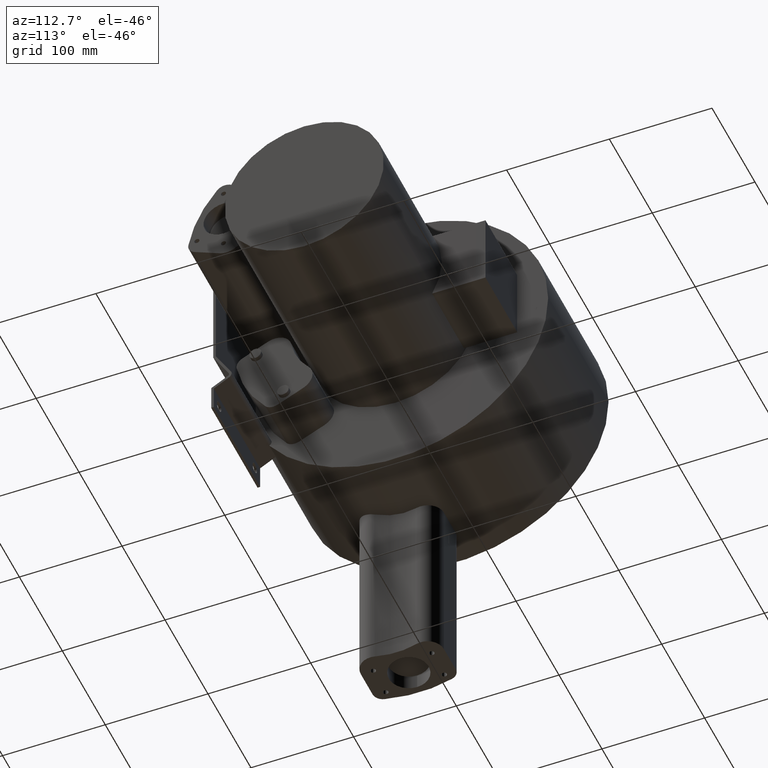
[diagram: clean part render]
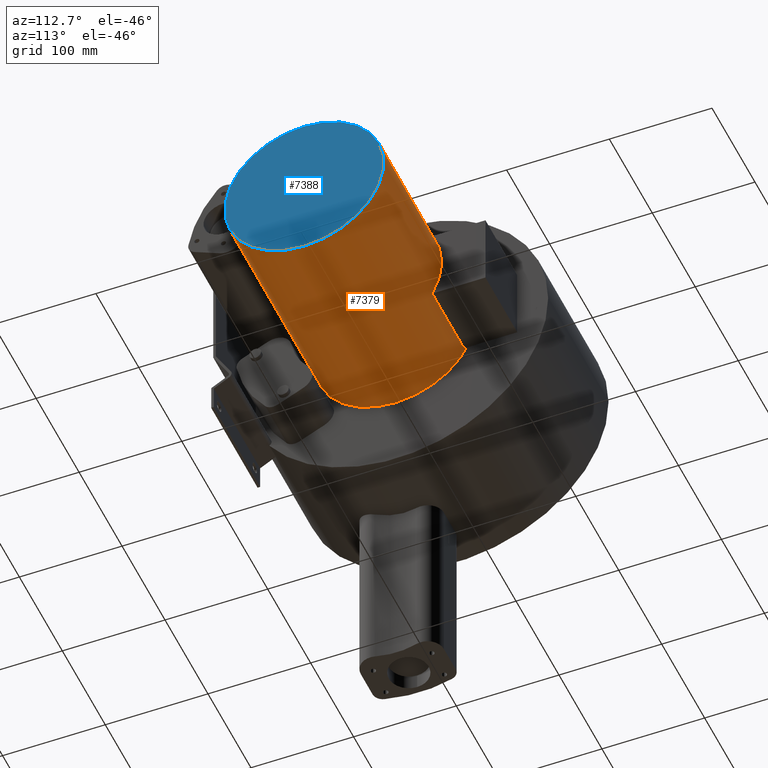
[diagram: same view with the hole feature highlighted: cylindrical wall and planar end face, labeled with their STEP entity ids]
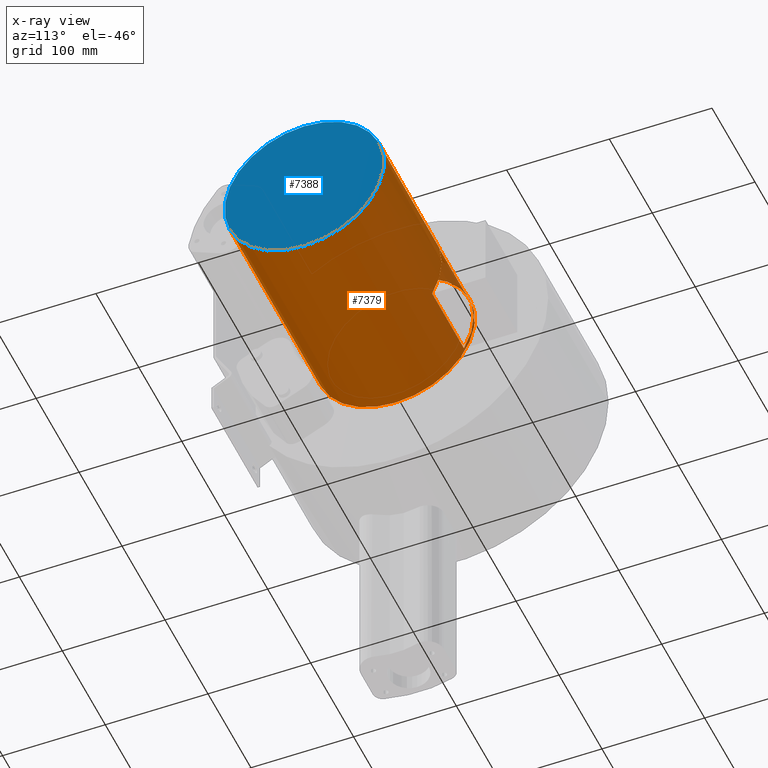
[diagram: x-ray of the same camera — body ghosted, the hole faces saturated]
A machine part, auxiliary view. The highlighted faces form one hole feature of diameter 155 mm: the cylindrical wall (entity #7379, orange) and its adjacent planar end face (entity #7388, blue) — they share a circular edge in the B-rep.
The next image is the same camera in x-ray (body ghosted, the hole faces saturated) — the bore reads through the body.
Wall:
#7193=CARTESIAN_POINT('',(219.00000000000003,68.097356776897001,37.0));
#7194=VERTEX_POINT('',#7193);
#7195=CARTESIAN_POINT('',(145.0,68.097356776897001,37.0));
#7196=VERTEX_POINT('',#7195);
#7197=CARTESIAN_POINT('',(219.00000000000003,68.097356776897001,37.0));
#7198=DIRECTION('',(-1.0,0.0,0.0));
#7199=VECTOR('',#7198,74.000000000000028);
#7200=LINE('',#7197,#7199);
#7201=EDGE_CURVE('',#7194,#7196,#7200,.T.);
#7233=CARTESIAN_POINT('',(219.00000000000003,68.097356776897001,-37.0));
#7234=VERTEX_POINT('',#7233);
#7235=CARTESIAN_POINT('',(219.00000000000003,0.0,0.0));
#7236=DIRECTION('',(1.0,0.0,0.0));
#7237=DIRECTION('',(0.0,0.0,1.0));
#7238=AXIS2_PLACEMENT_3D('',#7235,#7236,#7237);
#7239=CIRCLE('',#7238,77.5);
#7240=EDGE_CURVE('',#7234,#7194,#7239,.T.);
#7265=CARTESIAN_POINT('',(145.0,68.097356776897001,-37.0));
#7266=VERTEX_POINT('',#7265);
#7267=CARTESIAN_POINT('',(145.0,0.0,0.0));
#7268=DIRECTION('',(-1.0,0.0,0.0));
#7269=DIRECTION('',(0.0,0.0,1.0));
#7270=AXIS2_PLACEMENT_3D('',#7267,#7268,#7269);
#7271=CIRCLE('',#7270,77.5);
#7272=EDGE_CURVE('',#7196,#7266,#7271,.T.);
#7297=CARTESIAN_POINT('',(145.0,68.097356776897001,-37.0));
#7298=DIRECTION('',(1.0,0.0,0.0));
#7299=VECTOR('',#7298,74.000000000000028);
#7300=LINE('',#7297,#7299);
#7301=EDGE_CURVE('',#7266,#7234,#7300,.T.);
#7331=CARTESIAN_POINT('',(142.00000000000003,9.491013E-015,-77.5));
#7332=VERTEX_POINT('',#7331);
#7333=CARTESIAN_POINT('',(142.00000000000003,0.0,0.0));
#7334=DIRECTION('',(-1.0,0.0,0.0));
#7335=DIRECTION('',(0.0,0.0,1.0));
#7336=AXIS2_PLACEMENT_3D('',#7333,#7334,#7335);
#7337=CIRCLE('',#7336,77.5);
#7338=EDGE_CURVE('',#7332,#7332,#7337,.T.);
#7354=CARTESIAN_POINT('',(142.00000000000003,0.0,0.0));
#7355=DIRECTION('',(1.0,0.0,0.0));
#7356=DIRECTION('',(0.0,0.0,1.0));
#7357=AXIS2_PLACEMENT_3D('',#7354,#7355,#7356);
#7358=CYLINDRICAL_SURFACE('',#7357,77.5);
#7359=CARTESIAN_POINT('',(354.00000000000006,9.491013E-015,-77.5));
#7360=VERTEX_POINT('',#7359);
#7361=CARTESIAN_POINT('',(354.00000000000006,0.0,0.0));
#7362=DIRECTION('',(-1.0,0.0,0.0));
#7363=DIRECTION('',(0.0,0.0,1.0));
#7364=AXIS2_PLACEMENT_3D('',#7361,#7362,#7363);
#7365=CIRCLE('',#7364,77.5);
#7366=EDGE_CURVE('',#7360,#7360,#7365,.T.);
#7367=ORIENTED_EDGE('',*,*,#7366,.T.);
#7368=EDGE_LOOP('',(#7367));
#7369=FACE_OUTER_BOUND('',#7368,.T.);
#7370=ORIENTED_EDGE('',*,*,#7240,.T.);
#7371=ORIENTED_EDGE('',*,*,#7201,.T.);
#7372=ORIENTED_EDGE('',*,*,#7272,.T.);
#7373=ORIENTED_EDGE('',*,*,#7301,.T.);
#7374=EDGE_LOOP('',(#7370,#7371,#7372,#7373));
#7375=FACE_BOUND('',#7374,.T.);
#7376=ORIENTED_EDGE('',*,*,#7338,.F.);
#7377=EDGE_LOOP('',(#7376));
#7378=FACE_BOUND('',#7377,.T.);
#7379=ADVANCED_FACE('',(#7369,#7375,#7378),#7358,.T.);
End face:
#7359=CARTESIAN_POINT('',(354.00000000000006,9.491013E-015,-77.5));
#7360=VERTEX_POINT('',#7359);
#7361=CARTESIAN_POINT('',(354.00000000000006,0.0,0.0));
#7362=DIRECTION('',(-1.0,0.0,0.0));
#7363=DIRECTION('',(0.0,0.0,1.0));
#7364=AXIS2_PLACEMENT_3D('',#7361,#7362,#7363);
#7365=CIRCLE('',#7364,77.5);
#7366=EDGE_CURVE('',#7360,#7360,#7365,.T.);
#7380=CARTESIAN_POINT('',(354.00000000000006,0.0,0.0));
#7381=DIRECTION('',(-1.0,0.0,0.0));
#7382=DIRECTION('',(0.0,0.0,1.0));
#7383=AXIS2_PLACEMENT_3D('',#7380,#7381,#7382);
#7384=PLANE('',#7383);
#7385=ORIENTED_EDGE('',*,*,#7366,.F.);
#7386=EDGE_LOOP('',(#7385));
#7387=FACE_OUTER_BOUND('',#7386,.T.);
#7388=ADVANCED_FACE('',(#7387),#7384,.F.);